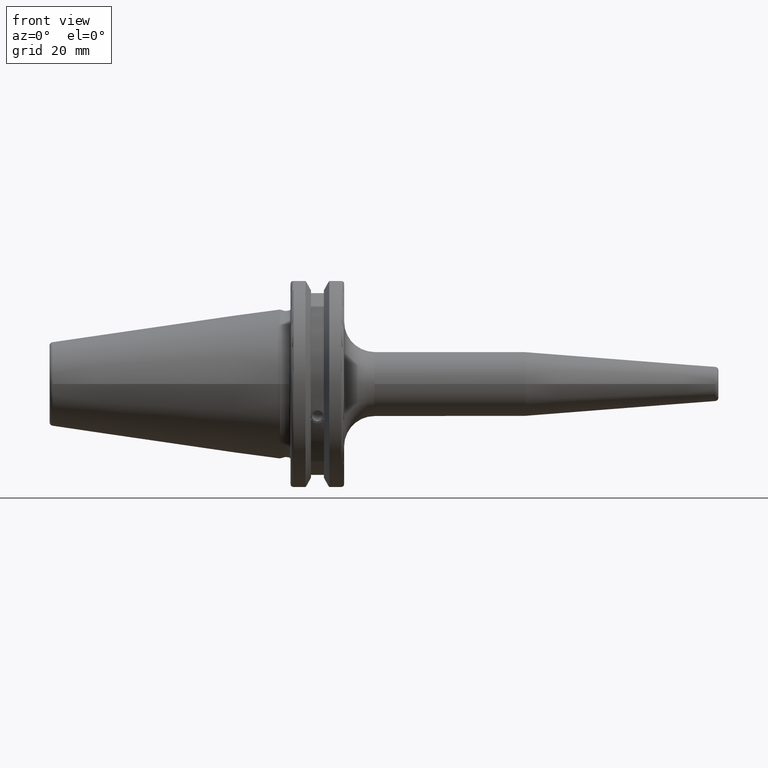
[diagram: clean part render]
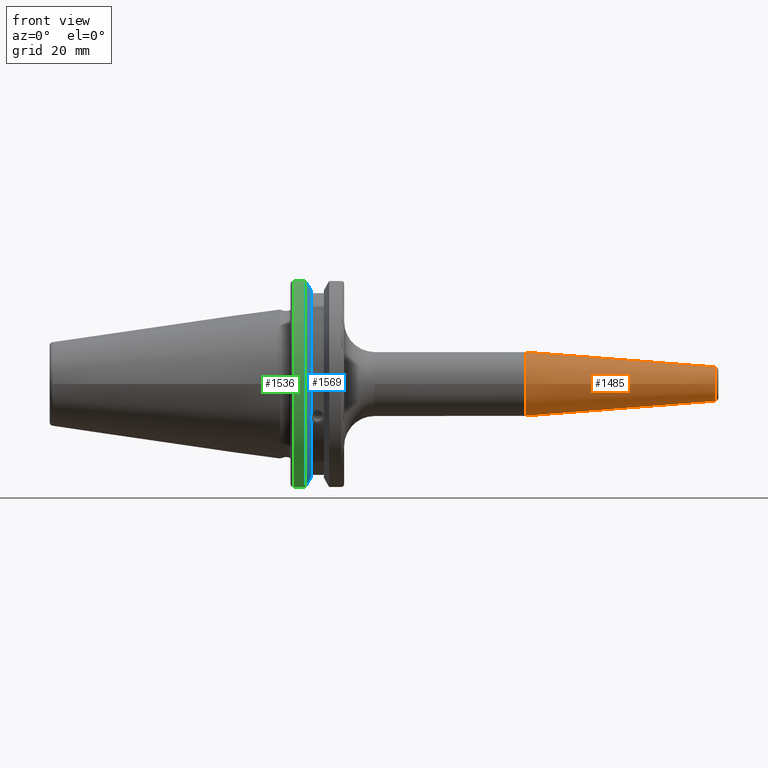
[diagram: same view with three faces highlighted in distinct colors, each labeled with its STEP entity id]
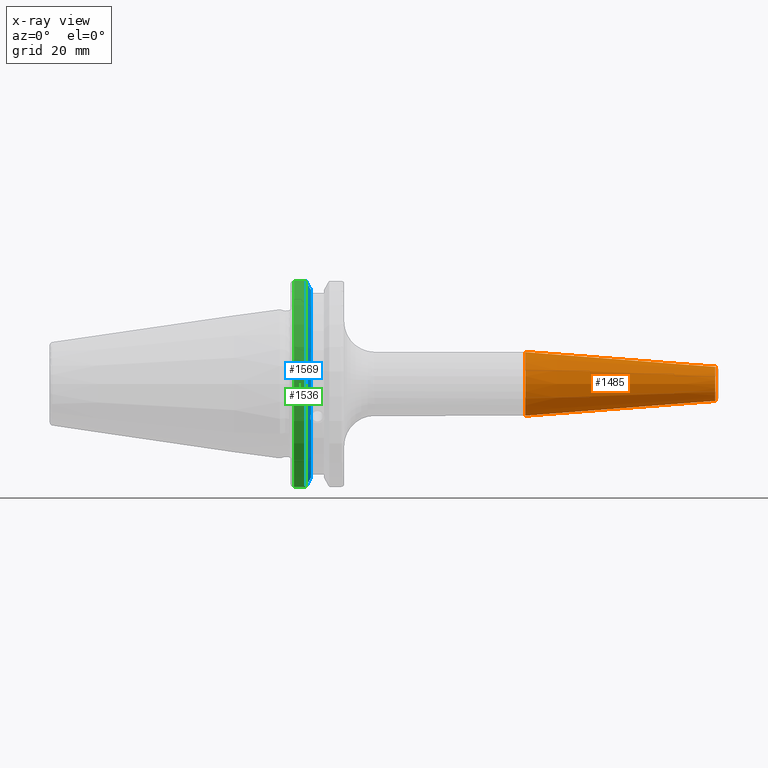
[diagram: x-ray of the same camera — body ghosted, the three highlighted faces saturated]
A machine part, front view with three faces highlighted in distinct colors.
The next image is the same camera in x-ray (body ghosted, the three faces saturated) — at least one of them is partly hidden behind the body in this view.
Their STEP definitions:

[orange] entity #1485 — the highlighted conical surface has half-angle 4.5 deg.
#157=LINE('',#2237,#253);
#253=VECTOR('',#1786,7.25);
#349=CONICAL_SURFACE('',#1599,7.25,0.0785398163397448);
#365=FACE_OUTER_BOUND('',#452,.T.);
#452=EDGE_LOOP('',(#1015,#1016,#1017,#1018,#1019));
#554=CIRCLE('',#1597,5.07252684207492);
#555=CIRCLE('',#1598,5.07252684207492);
#556=CIRCLE('',#1600,9.5);
#626=VERTEX_POINT('',#2230);
#627=VERTEX_POINT('',#2232);
#628=VERTEX_POINT('',#2236);
#779=EDGE_CURVE('',#626,#627,#554,.T.);
#780=EDGE_CURVE('',#627,#626,#555,.T.);
#781=EDGE_CURVE('',#627,#628,#157,.T.);
#782=EDGE_CURVE('',#628,#628,#556,.T.);
#1015=ORIENTED_EDGE('',*,*,#780,.F.);
#1016=ORIENTED_EDGE('',*,*,#781,.T.);
#1017=ORIENTED_EDGE('',*,*,#782,.T.);
#1018=ORIENTED_EDGE('',*,*,#781,.F.);
#1019=ORIENTED_EDGE('',*,*,#779,.F.);
#1485=ADVANCED_FACE('',(#365),#349,.T.);
#1597=AXIS2_PLACEMENT_3D('',#2233,#1780,#1781);
#1598=AXIS2_PLACEMENT_3D('',#2234,#1782,#1783);
#1599=AXIS2_PLACEMENT_3D('',#2235,#1784,#1785);
#1600=AXIS2_PLACEMENT_3D('',#2238,#1787,#1788);
#1780=DIRECTION('center_axis',(1.,0.,0.));
#1781=DIRECTION('ref_axis',(0.,-1.,3.06161699786838E-17));
#1782=DIRECTION('center_axis',(1.,0.,0.));
#1783=DIRECTION('ref_axis',(0.,-1.,3.06161699786838E-17));
#1784=DIRECTION('center_axis',(-1.,0.,0.));
#1785=DIRECTION('ref_axis',(0.,1.,0.));
#1786=DIRECTION('',(-0.996917333733128,-0.0784590957278449,-9.6084680447101E-18));
#1787=DIRECTION('center_axis',(1.,0.,0.));
#1788=DIRECTION('ref_axis',(0.,0.,-1.));
#2230=CARTESIAN_POINT('',(129.078459095728,-6.21205376073608E-16,5.07252684207492));
#2232=CARTESIAN_POINT('',(129.078459095728,-5.07252684207492,-6.21205376073608E-16));
#2233=CARTESIAN_POINT('Origin',(129.078459095728,0.,-7.7650672009201E-16));
#2234=CARTESIAN_POINT('Origin',(129.078459095728,0.,-7.7650672009201E-16));
#2235=CARTESIAN_POINT('Origin',(101.411039343607,0.,0.));
#2236=CARTESIAN_POINT('',(72.8220786872138,-9.5,-1.16341445918999E-15));
#2237=CARTESIAN_POINT('',(101.411039343607,-7.25,-8.87868929381831E-16));
#2238=CARTESIAN_POINT('Origin',(72.8220786872138,0.,0.));

[blue] entity #1569 — the highlighted conical surface has half-angle 60 deg.
#25=(
BOUNDED_CURVE()
B_SPLINE_CURVE(2,(#2827,#2828,#2829),.UNSPECIFIED.,.F.,.F.)
B_SPLINE_CURVE_WITH_KNOTS((3,3),(0.,0.276549142796136),.UNSPECIFIED.)
CURVE()
GEOMETRIC_REPRESENTATION_ITEM()
RATIONAL_B_SPLINE_CURVE((1.,1.00095203903316,1.00031614444813))
REPRESENTATION_ITEM('')
);
#26=(
BOUNDED_CURVE()
B_SPLINE_CURVE(2,(#2839,#2840,#2841),.UNSPECIFIED.,.F.,.F.)
B_SPLINE_CURVE_WITH_KNOTS((3,3),(0.0550586467392022,0.33160778953585),
 .UNSPECIFIED.)
CURVE()
GEOMETRIC_REPRESENTATION_ITEM()
RATIONAL_B_SPLINE_CURVE((1.00031614445148,1.00095203904325,1.))
REPRESENTATION_ITEM('')
);
#27=(
BOUNDED_CURVE()
B_SPLINE_CURVE(2,(#2874,#2875,#2876),.UNSPECIFIED.,.F.,.F.)
B_SPLINE_CURVE_WITH_KNOTS((3,3),(0.,0.0639048713676282),.UNSPECIFIED.)
CURVE()
GEOMETRIC_REPRESENTATION_ITEM()
RATIONAL_B_SPLINE_CURVE((1.,1.00028444218284,1.00047644010574))
REPRESENTATION_ITEM('')
);
#28=(
BOUNDED_CURVE()
B_SPLINE_CURVE(2,(#2882,#2883,#2884),.UNSPECIFIED.,.F.,.F.)
B_SPLINE_CURVE_WITH_KNOTS((3,3),(0.329353533631205,0.393258405001025),
 .UNSPECIFIED.)
CURVE()
GEOMETRIC_REPRESENTATION_ITEM()
RATIONAL_B_SPLINE_CURVE((1.00047644010572,1.00028444218283,1.))
REPRESENTATION_ITEM('')
);
#55=B_SPLINE_CURVE_WITH_KNOTS('',3,(#2437,#2438,#2439,#2440,#2441,#2442,
#2443,#2444,#2445,#2446,#2447,#2448,#2449,#2450),.UNSPECIFIED.,.F.,.F.,
(4,2,2,2,2,2,4),(0.451995700189024,0.464547828547663,0.504528771685167,
0.544509714822672,0.584490657960178,0.624471601097683,0.63702372945632),
 .UNSPECIFIED.);
#363=CONICAL_SURFACE('',#1769,30.3546886482472,1.0471975511966);
#449=FACE_OUTER_BOUND('',#550,.T.);
#550=EDGE_LOOP('',(#1464,#1465,#1466,#1467,#1468,#1469,#1470,#1471));
#582=CIRCLE('',#1659,28.9593772964944);
#606=CIRCLE('',#1719,31.75);
#624=CIRCLE('',#1770,28.9593772964944);
#669=VERTEX_POINT('',#2434);
#670=VERTEX_POINT('',#2436);
#687=VERTEX_POINT('',#2529);
#749=VERTEX_POINT('',#2824);
#750=VERTEX_POINT('',#2826);
#753=VERTEX_POINT('',#2838);
#757=VERTEX_POINT('',#2872);
#758=VERTEX_POINT('',#2878);
#837=EDGE_CURVE('',#670,#669,#55,.T.);
#861=EDGE_CURVE('',#670,#687,#582,.T.);
#948=EDGE_CURVE('',#750,#749,#25,.T.);
#954=EDGE_CURVE('',#753,#687,#26,.T.);
#962=EDGE_CURVE('',#757,#749,#27,.T.);
#964=EDGE_CURVE('',#757,#758,#606,.T.);
#965=EDGE_CURVE('',#753,#758,#28,.T.);
#1009=EDGE_CURVE('',#750,#669,#624,.T.);
#1464=ORIENTED_EDGE('',*,*,#837,.T.);
#1465=ORIENTED_EDGE('',*,*,#1009,.F.);
#1466=ORIENTED_EDGE('',*,*,#948,.T.);
#1467=ORIENTED_EDGE('',*,*,#962,.F.);
#1468=ORIENTED_EDGE('',*,*,#964,.T.);
#1469=ORIENTED_EDGE('',*,*,#965,.F.);
#1470=ORIENTED_EDGE('',*,*,#954,.T.);
#1471=ORIENTED_EDGE('',*,*,#861,.F.);
#1569=ADVANCED_FACE('',(#449),#363,.T.);
#1659=AXIS2_PLACEMENT_3D('',#2530,#1936,#1937);
#1719=AXIS2_PLACEMENT_3D('',#2880,#2099,#2100);
#1769=AXIS2_PLACEMENT_3D('',#3000,#2220,#2221);
#1770=AXIS2_PLACEMENT_3D('',#3001,#2222,#2223);
#1936=DIRECTION('center_axis',(1.,0.,0.));
#1937=DIRECTION('ref_axis',(0.,0.,-1.));
#2099=DIRECTION('center_axis',(1.,0.,0.));
#2100=DIRECTION('ref_axis',(0.,0.,-1.));
#2220=DIRECTION('center_axis',(-1.,0.,0.));
#2221=DIRECTION('ref_axis',(0.,-1.,-1.22464679914735E-16));
#2222=DIRECTION('center_axis',(1.,0.,0.));
#2223=DIRECTION('ref_axis',(0.,0.,-1.));
#2434=CARTESIAN_POINT('',(9.2191,-27.4956274489925,-9.09043478536245));
#2436=CARTESIAN_POINT('',(9.2191,-26.9060914640648,-10.7101715919071));
#2437=CARTESIAN_POINT('Ctrl Pts',(9.2191,-26.9060914640648,-10.7101715919071));
#2438=CARTESIAN_POINT('Ctrl Pts',(9.20497959280038,-26.9406927482839,-10.6893765730703));
#2439=CARTESIAN_POINT('Ctrl Pts',(9.19150701821433,-26.9744191989197,-10.6676007180673));
#2440=CARTESIAN_POINT('Ctrl Pts',(9.13811855884095,-27.1113422433189,-10.5723885976054));
#2441=CARTESIAN_POINT('Ctrl Pts',(9.09998029158246,-27.2180531796526,-10.4801333026531));
#2442=CARTESIAN_POINT('Ctrl Pts',(9.04778935539424,-27.3968610665578,-10.2639559818059));
#2443=CARTESIAN_POINT('Ctrl Pts',(9.0341,-27.4684373304961,-10.139516340139));
#2444=CARTESIAN_POINT('Ctrl Pts',(9.0341,-27.559599249844,-9.8890510252165));
#2445=CARTESIAN_POINT('Ctrl Pts',(9.04778935539424,-27.5847569104122,-9.74771639360671));
#2446=CARTESIAN_POINT('Ctrl Pts',(9.09998029158246,-27.5867382255984,-9.46717946402648));
#2447=CARTESIAN_POINT('Ctrl Pts',(9.13811855884095,-27.5642934663232,-9.32791534028655));
#2448=CARTESIAN_POINT('Ctrl Pts',(9.19150701821434,-27.5206055003512,-9.16696618806877));
#2449=CARTESIAN_POINT('Ctrl Pts',(9.20497959280038,-27.5087667900418,-9.12860597076217));
#2450=CARTESIAN_POINT('Ctrl Pts',(9.2191,-27.4956274489925,-9.09043478536245));
#2529=CARTESIAN_POINT('',(9.2191,-8.19,-27.7771386827498));
#2530=CARTESIAN_POINT('Origin',(9.2191,0.,0.));
#2824=CARTESIAN_POINT('',(7.88668530351257,-8.19,30.1755016258903));
#2826=CARTESIAN_POINT('',(9.2191,-8.19,27.7771386827498));
#2827=CARTESIAN_POINT('Ctrl Pts',(9.2191,-8.19,27.7771386827498));
#2828=CARTESIAN_POINT('Ctrl Pts',(8.58046356152393,-8.19,28.9303689539705));
#2829=CARTESIAN_POINT('Ctrl Pts',(7.88668530351257,-8.19,30.1755016258903));
#2838=CARTESIAN_POINT('',(7.88668530351256,-8.19,-30.1755016258903));
#2839=CARTESIAN_POINT('Ctrl Pts',(7.88668530351256,-8.19,-30.1755016258903));
#2840=CARTESIAN_POINT('Ctrl Pts',(8.5804635615235,-8.19,-28.9303689539712));
#2841=CARTESIAN_POINT('Ctrl Pts',(9.2191,-8.19,-27.7771386827498));
#2872=CARTESIAN_POINT('',(7.60793323092436,-8.67204822802685,30.5427254764662));
#2874=CARTESIAN_POINT('Ctrl Pts',(7.60793323092436,-8.67204822802686,30.5427254764662));
#2875=CARTESIAN_POINT('Ctrl Pts',(7.74899148121626,-8.42917748262648,30.357706789263));
#2876=CARTESIAN_POINT('Ctrl Pts',(7.88668530351257,-8.19,30.1755016258903));
#2878=CARTESIAN_POINT('',(7.60793323092436,-8.67204822802685,-30.5427254764662));
#2880=CARTESIAN_POINT('Origin',(7.60793323092436,0.,0.));
#2882=CARTESIAN_POINT('Ctrl Pts',(7.88668530351256,-8.19,-30.1755016258903));
#2883=CARTESIAN_POINT('Ctrl Pts',(7.74899148121159,-8.42917748263467,-30.3577067892692));
#2884=CARTESIAN_POINT('Ctrl Pts',(7.60793323092435,-8.67204822802687,-30.5427254764662));
#3000=CARTESIAN_POINT('Origin',(8.41351661546218,0.,0.));
#3001=CARTESIAN_POINT('Origin',(9.2191,0.,0.));

[green] entity #1536 — the highlighted cylindrical surface (partial cylindrical patch) has radius 31.75 mm, axis along (1, 0, 0).
#100=CYLINDRICAL_SURFACE('',#1718,31.75);
#230=LINE('',#2873,#326);
#231=LINE('',#2879,#327);
#326=VECTOR('',#2095,10.);
#327=VECTOR('',#2098,10.);
#416=FACE_OUTER_BOUND('',#514,.T.);
#514=EDGE_LOOP('',(#1319,#1320,#1321,#1322));
#605=CIRCLE('',#1716,31.75);
#606=CIRCLE('',#1719,31.75);
#755=VERTEX_POINT('',#2852);
#756=VERTEX_POINT('',#2861);
#757=VERTEX_POINT('',#2872);
#758=VERTEX_POINT('',#2878);
#959=EDGE_CURVE('',#755,#756,#605,.T.);
#961=EDGE_CURVE('',#756,#757,#230,.T.);
#963=EDGE_CURVE('',#758,#755,#231,.T.);
#964=EDGE_CURVE('',#757,#758,#606,.T.);
#1319=ORIENTED_EDGE('',*,*,#959,.F.);
#1320=ORIENTED_EDGE('',*,*,#963,.F.);
#1321=ORIENTED_EDGE('',*,*,#964,.F.);
#1322=ORIENTED_EDGE('',*,*,#961,.F.);
#1536=ADVANCED_FACE('',(#416),#100,.T.);
#1716=AXIS2_PLACEMENT_3D('',#2862,#2091,#2092);
#1718=AXIS2_PLACEMENT_3D('',#2877,#2096,#2097);
#1719=AXIS2_PLACEMENT_3D('',#2880,#2099,#2100);
#2091=DIRECTION('center_axis',(-1.,0.,0.));
#2092=DIRECTION('ref_axis',(0.,-1.,1.60812264967664E-16));
#2095=DIRECTION('',(1.,0.,0.));
#2096=DIRECTION('center_axis',(1.,0.,0.));
#2097=DIRECTION('ref_axis',(0.,-1.,1.22464679914735E-16));
#2098=DIRECTION('',(-1.,0.,0.));
#2099=DIRECTION('center_axis',(1.,0.,0.));
#2100=DIRECTION('ref_axis',(0.,0.,-1.));
#2852=CARTESIAN_POINT('',(4.175,-8.67204822802685,-30.5427254764662));
#2861=CARTESIAN_POINT('',(4.175,-8.67204822802685,30.5427254764662));
#2862=CARTESIAN_POINT('Origin',(4.175,0.,0.));
#2872=CARTESIAN_POINT('',(7.60793323092436,-8.67204822802685,30.5427254764662));
#2873=CARTESIAN_POINT('',(5.39146661546218,-8.67204822802685,30.5427254764662));
#2877=CARTESIAN_POINT('Origin',(5.39146661546218,0.,0.));
#2878=CARTESIAN_POINT('',(7.60793323092436,-8.67204822802685,-30.5427254764662));
#2879=CARTESIAN_POINT('',(5.39146661546218,-8.67204822802685,-30.5427254764662));
#2880=CARTESIAN_POINT('Origin',(7.60793323092436,0.,0.));